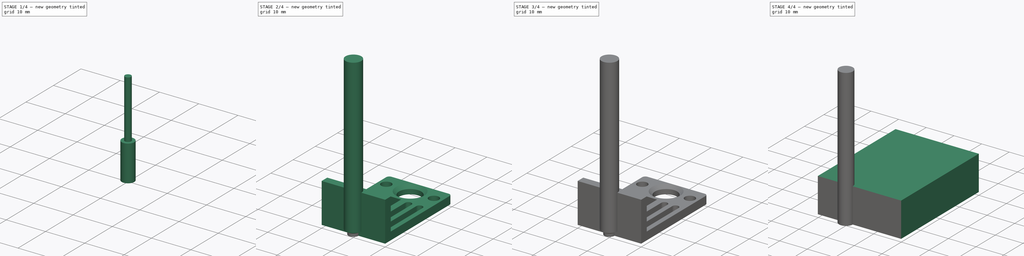
[diagram: build sequence overview — one tinted view per stage of 4, left to right]
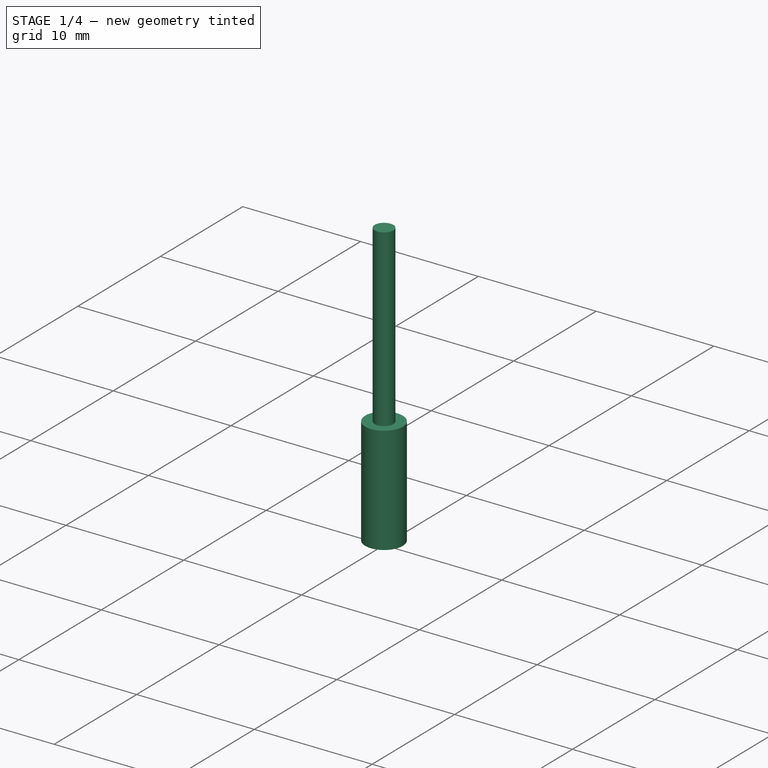
[diagram: stage 1 of 4 — iso view after this stage's code; geometry added in this stage tinted green]
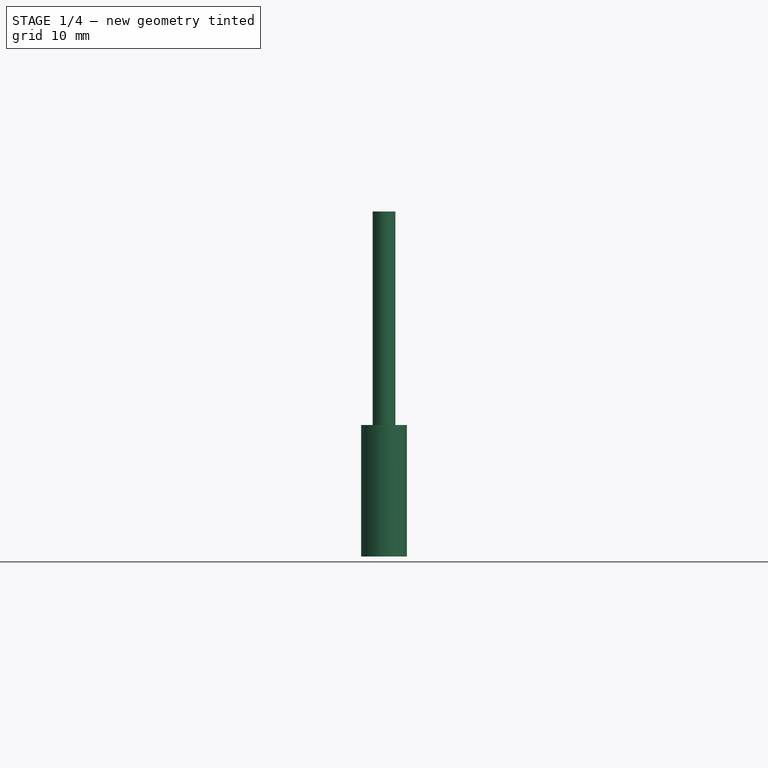
[diagram: stage 1 of 4 — front view after this stage's code; geometry added in this stage tinted green]
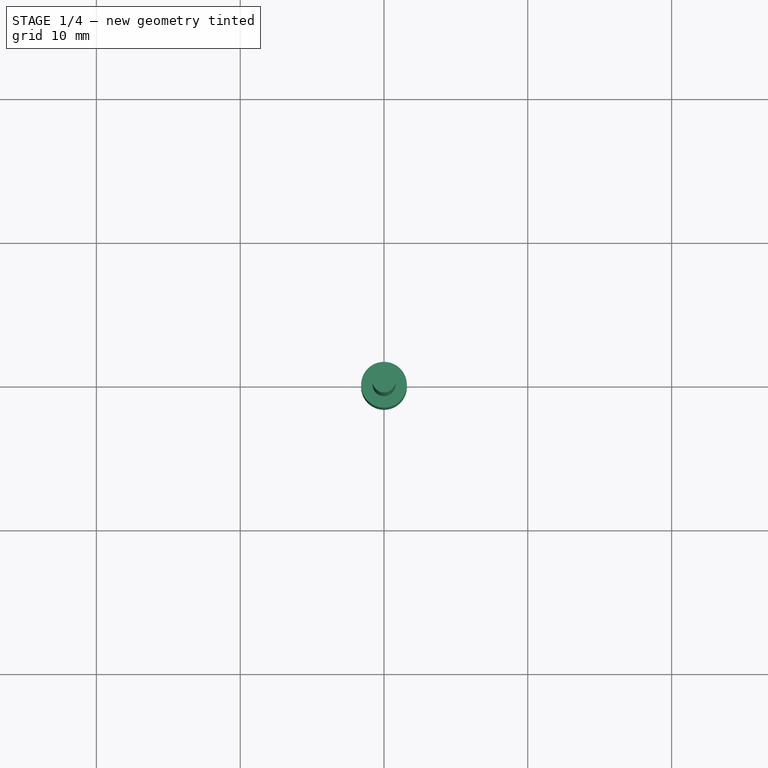
[diagram: stage 1 of 4 — top view after this stage's code; geometry added in this stage tinted green]
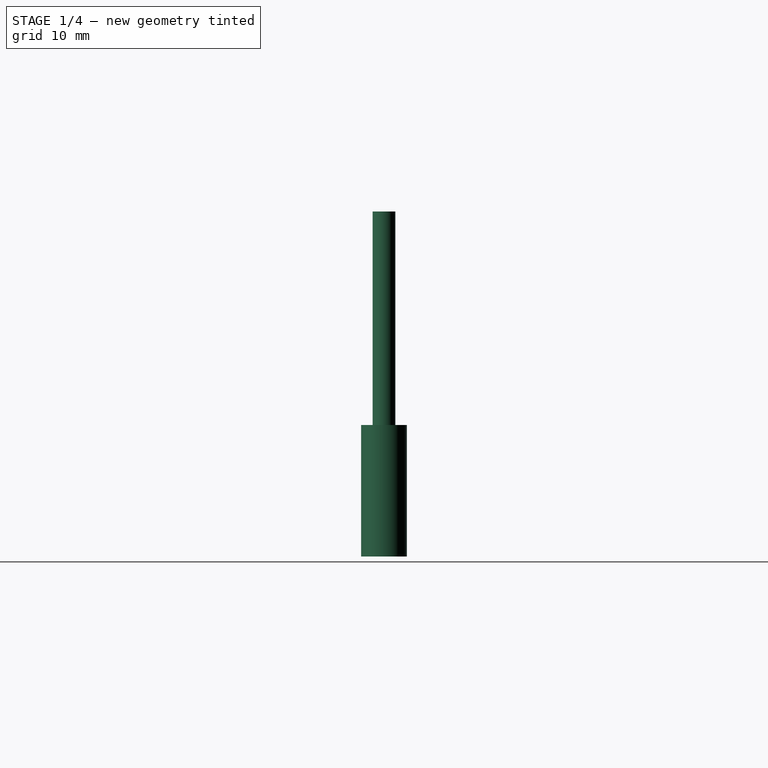
[diagram: stage 1 of 4 — right view after this stage's code; geometry added in this stage tinted green]
FCSTD DOCUMENT  (FreeCAD 0.20R29177 (Git))
Label: Heat Break
License: All rights reserved
LicenseURL: http://en.wikipedia.org/wiki/All_rights_reserved
objects: Part::FeaturePython×9, Path::FeaturePython×9, App::DocumentObjectGroup×3, App::FeaturePython×2, Part::Feature×1, Sketcher::SketchObject×1, PartDesign::Revolution×1, PartDesign::Body×1
note: 16 computed .brp shape members not serialized (recipe doc carries the construction recipe); baked Part::Feature solids carry a one-line shape summary decoded from their .brp

FEATURE [Path::FeaturePython] TC__1_55mm_Endmill001  label="TC: 1.55mm Endmill001"  # Path/CAM operation (typed FeaturePython)
  HorizFeed = 0
  HorizRapid = 0
  SpindleDir = 0
  SpindleSpeed = 0
  Tool = -> ToolBit002
  ToolNumber = 7
  VertFeed = 0
  VertRapid = 0
  expr: HorizRapid = SetupSheet.HorizRapid
  expr: VertRapid = SetupSheet.VertRapid
FEATURE [Part::FeaturePython] ToolBit003  label="1.55mm Endmill002"  # Path/CAM toolbit (typed FeaturePython)
  BitPropertyNames = Chipload | CuttingEdgeHeight | Diameter | Flutes | Length | Material | ShankDiameter | SpindleDirection
  BitShape = C:/Program Files/FreeCAD 0.20/Mod\Path\Tools\Shape\endmill.fcstd
  Chipload = 0
  CuttingEdgeHeight = 9.5
  Diameter = 1.55
  File = <userpath>/AppData/Roaming/FreeCAD/Toolbits\Bit\slittingsaw.fctb
  Flutes = 2
  Length = 19.32
  Material = 0
  ShankDiameter = 1.55
  ShapeName = endmill
  SpindleDirection = 0
FEATURE [Path::FeaturePython] TC__1_55mm_Endmill002  label="TC: 1.55mm Endmill002"  # Path/CAM operation (typed FeaturePython)
  HorizFeed = 0
  HorizRapid = 0
  SpindleDir = 0
  SpindleSpeed = 0
  Tool = -> ToolBit003
  ToolNumber = 7
  VertFeed = 0
  VertRapid = 0
  expr: HorizRapid = SetupSheet.HorizRapid
  expr: VertRapid = SetupSheet.VertRapid
FEATURE [App::DocumentObjectGroup] Tools
  Group = -> [TC__Default_Tool,TC__3_175mm_Endmill002,TC__1_55mm_Endmill001,TC__1_55mm_Endmill002]
FEATURE [Path::FeaturePython] Job  # Path/CAM operation (typed FeaturePython)
  CycleTime = 00:00:00
  Fixtures = G54
  GeometryTolerance = 0.01
  JobType = 0
  Model = -> Model
  Operations = -> Profile
  OrderOutputBy = 0
  PostProcessor = 1
  SetupSheet = -> SetupSheet
  SplitOutput = false
  Stock = -> Stock
  Tools = -> Tools
FEATURE [Path::FeaturePython] Helix001  # Path/CAM operation (typed FeaturePython)
  Active = true
  Base = -> [Clone]
  ClearanceHeight = 17.5
  CoolantMode = 0
  CycleTime = Cycletime Error
  Direction = 0
  FinalDepth = 0
  OffsetExtra = 0
  OpFinalDepth = 0
  OpStartDepth = 12.5
  OpStockZMax = 12.5
  OpStockZMin = -7.2e-15
  OpToolDiameter = 1.55
  SafeHeight = 15.5
  StartDepth = 2.6
  StartRadius = 0
  StartSide = 0
  StepDown = 0.1
  StepOver = 10
  ToolController = -> TC__1_55mm_Endmill002
  expr: ClearanceHeight = OpStockZMax + SetupSheet.ClearanceHeightOffset
  expr: FinalDepth = OpFinalDepth
  expr: SafeHeight = OpStockZMax + SetupSheet.SafeHeightOffset
  expr: StartDepth = 2.6mm
  expr: StepDown = 0.1mm
FEATURE [App::DocumentObjectGroup] Operations
  Group = -> [Profile,Pocket_Shape,Helix,Helix001]
FEATURE [Part::FeaturePython] temptool002  label="3.175mm Endmill004"  # Path/CAM toolbit (typed FeaturePython)
  BitPropertyNames = Chipload | CuttingEdgeHeight | Diameter | Flutes | Length | Material | ShankDiameter | SpindleDirection
  BitShape = C:/Program Files/FreeCAD 0.20/Mod\Path\Tools\Shape\endmill.fcstd
  Chipload = 0
  CuttingEdgeHeight = 9.15
  Diameter = 3.18
  File = <userpath>/AppData/Roaming/FreeCAD/Toolbits\Bit\5mm_Endmill.fctb
  Flutes = 2
  Length = 24
  Material = 0
  ShankDiameter = 1.59
  ShapeName = endmill
  SpindleDirection = 0
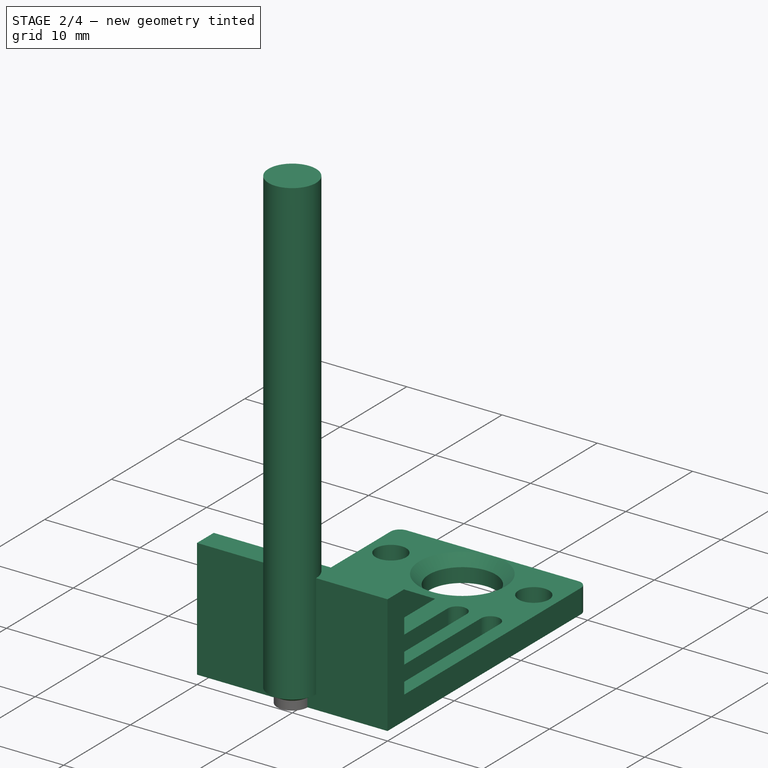
[diagram: stage 2 of 4 — iso view after this stage's code; geometry added in this stage tinted green]
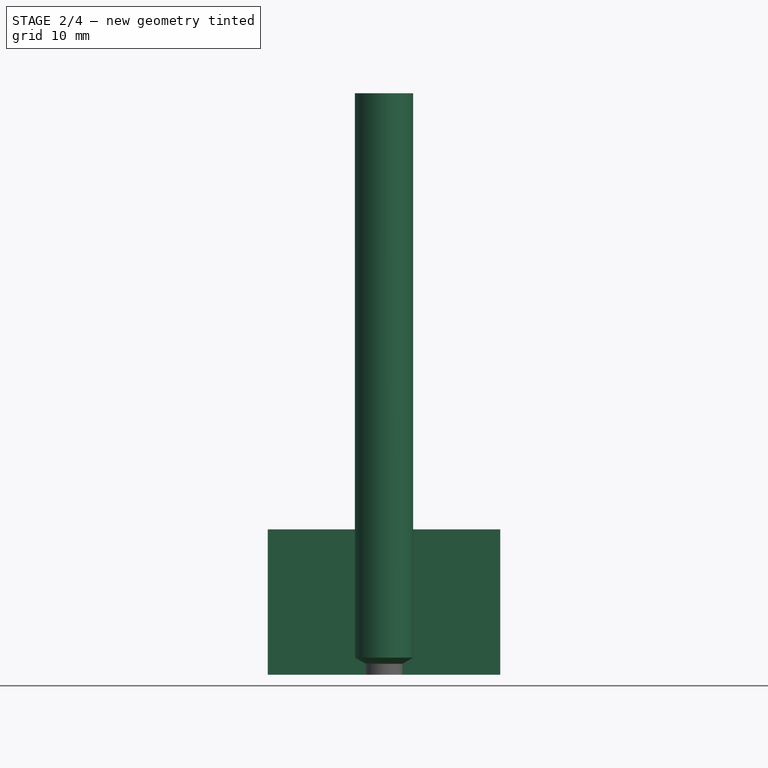
[diagram: stage 2 of 4 — front view after this stage's code; geometry added in this stage tinted green]
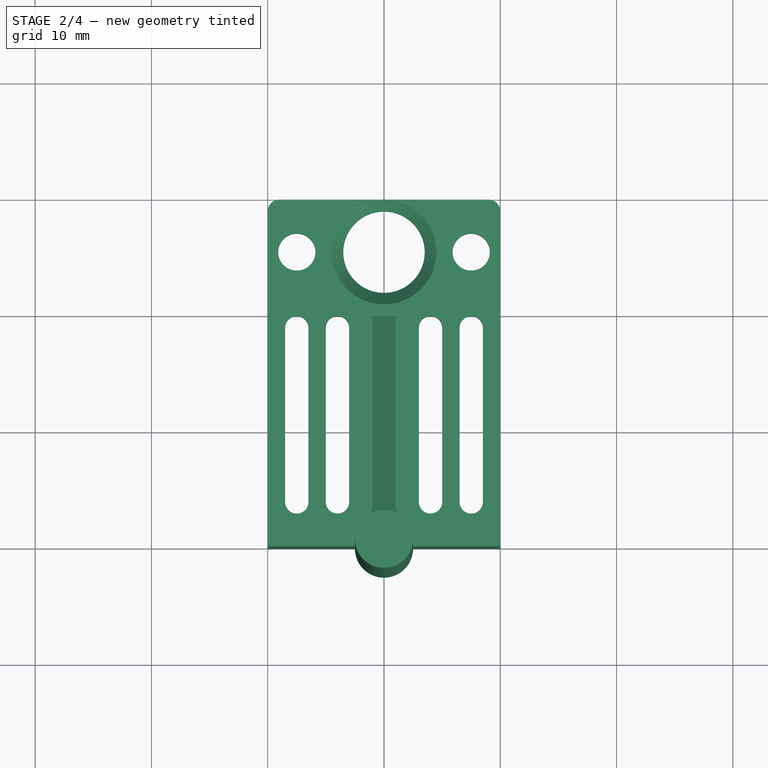
[diagram: stage 2 of 4 — top view after this stage's code; geometry added in this stage tinted green]
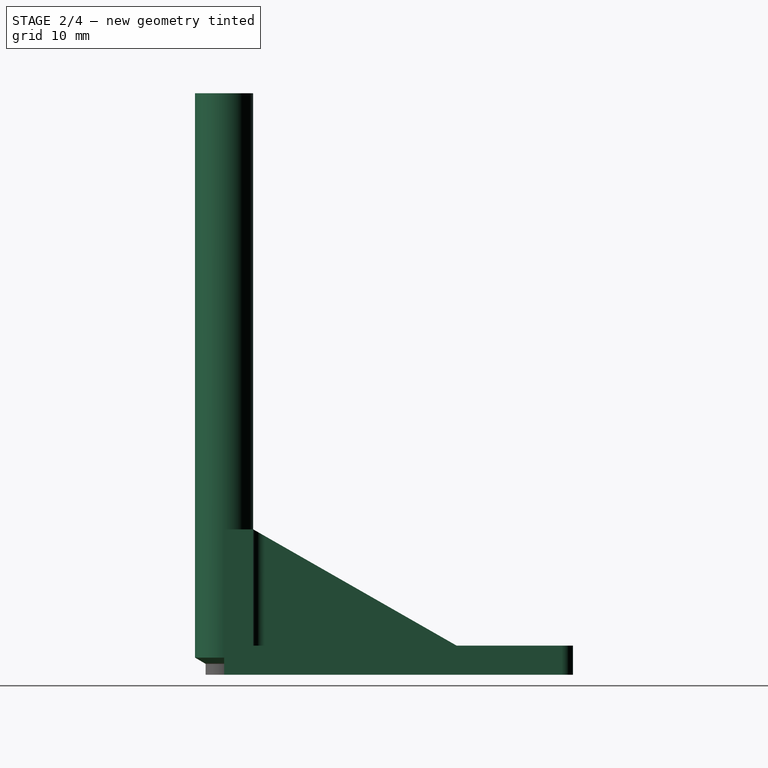
[diagram: stage 2 of 4 — right view after this stage's code; geometry added in this stage tinted green]
FEATURE [Part::Feature] Part__Feature  label="Fillet002"
  Placement = pos=(0,0,0) rot=(1,0,0;-1.5708rad)
  shape: bbox 20 x 30 x 12.5 mm, 42 faces (baked)
FEATURE [App::FeaturePython] SetupSheet  # Path/CAM operation (typed FeaturePython)
  ClearanceHeightExpression = OpStockZMax+SetupSheet.ClearanceHeightOffset
  ClearanceHeightOffset = 5
  CoolantMode = 0
  CoolantModes = None | Flood | Mist
  FinalDepthExpression = OpFinalDepth
  HorizRapid = 0
  SafeHeightExpression = OpStockZMax+SetupSheet.SafeHeightOffset
  SafeHeightOffset = 3
  StartDepthExpression = OpStartDepth
  StepDownExpression = OpToolDiameter
  VertRapid = 0
FEATURE [Part::FeaturePython] Clone  label="Model-Fillet002"  # Draft clone (typed FeaturePython)
  AttacherType = Attacher::AttachEngine3D
  Fuse = false
  Objects = -> [Part__Feature]
  PathResource = Model
  Placement = pos=(0,0,0) rot=(1,0,0;-1.5708rad)
  Scale = (1,1,1)
FEATURE [Path::FeaturePython] Profile  # Path/CAM operation (typed FeaturePython)
  Active = true
  AreaParams:
    Tolerance = 1e-07
    FitArcs = True
    Simplify = False
    CleanDistance = 0.0
    Accuracy = 0.01
    Unit = 1.0
    MinArcPoints = 4
    MaxArcPoints = 100
    ClipperScale = 10000000.0
    Fill = 0
    Coplanar = 0
    Reorient = True
    Outline = False
    Explode = False
    OpenMode = 0
    Deflection = 0.01
    SubjectFill = 0
    ClipFill = 0
    Offset = -1.59
    ExtraPass = 0
    Stepover = 0.0
    LastStepover = 0.0
    JoinType = 0
    EndType = 0
    MiterLimit = 2.0
    RoundPrecision = 0.0
    PocketMode = 0
    ToolRadius = 1.0
    PocketExtraOffset = 0.0
    PocketStepover = 0.0
    PocketLastStepover = 0.0
    FromCenter = False
    Angle = 45.0
    AngleShift = 0.0
    Shift = 0.0
    Thicken = False
    SectionCount = -1
    Stepdown = 1.0
    SectionOffset = 0.0
    SectionTolerance = 1e-06
    SectionMode = 2
    Project = False
  Base = -> [Clone]
  ClearanceHeight = 17.5
  CoolantMode = 0
  CycleTime = Cycletime Error
  Direction = 0
  FinalDepth = 2.5
  HandleMultipleFeatures = 0
  JoinType = 0
  MiterLimit = 0.1
  OffsetExtra = 0
  OpFinalDepth = 2.5
  OpStartDepth = 12.5
  OpStockZMax = 12.5
  OpStockZMin = -7.2e-15
  OpToolDiameter = 3.18
  PathParams = {'orientation': 1, 'feedrate': 0.0, 'feedrate_v': 0.0, 'verbose': True, 'resume_height': 15.5, 'retraction': 17.5, 'return_end': True, 'preamble': False}
  SafeHeight = 15.5
  Side = 1
  SplitArcs = false
  StartDepth = 12.5
  StartPoint = (0,0,0)
  StepDown = 0.1
  ToolController = -> TC__3_175mm_Endmill002
  UseComp = true
  UseStartPoint = false
  processCircles = false
  processHoles = false
  processPerimeter = true
  expr: ClearanceHeight = OpStockZMax + SetupSheet.ClearanceHeightOffset
  expr: FinalDepth = OpFinalDepth
  expr: SafeHeight = OpStockZMax + SetupSheet.SafeHeightOffset
  expr: StartDepth = OpStartDepth
  expr: StepDown = 0.1mm
FEATURE [Path::FeaturePython] Pocket_Shape  # Path/CAM operation (typed FeaturePython)
  Active = true
  AreaParams:
    Tolerance = 1e-07
    FitArcs = True
    Simplify = False
    CleanDistance = 0.0
    Accuracy = 0.01
    Unit = 1.0
    MinArcPoints = 4
    MaxArcPoints = 100
    ClipperScale = 10000000.0
    Fill = 0
    Coplanar = 0
    Reorient = True
    Outline = False
    Explode = False
    OpenMode = 0
    Deflection = 0.01
    SubjectFill = 0
    ClipFill = 0
    Offset = 0.0
    ExtraPass = 0
    Stepover = 0.0
    LastStepover = 0.0
    JoinType = 0
    EndType = 0
    MiterLimit = 2.0
    RoundPrecision = 0.0
    PocketMode = 2
    ToolRadius = 1.59
    PocketExtraOffset = 0.0
    PocketStepover = 1.59
    PocketLastStepover = 0.0
    FromCenter = True
    Angle = 45.0
    AngleShift = 0.0
    Shift = 0.0
    Thicken = False
    SectionCount = -1
    Stepdown = 1.0
    SectionOffset = 0.0
    SectionTolerance = 1e-06
    SectionMode = 2
    Project = False
  Base = -> [Clone]
  ClearanceHeight = 17.5
  CoolantMode = 0
  CutMode = 0
  CycleTime = Cycletime Error
  ExtensionCorners = true
  ExtensionLengthDefault = 1.59
  ExtraOffset = 0
  FinalDepth = 2.5
  FinishDepth = 0
  KeepToolDown = false
  MinTravel = false
  OffsetPattern = 1
  OpFinalDepth = 2.5
  OpStartDepth = 12.5
  OpStockZMax = 12.5
  OpStockZMin = -7.2e-15
  OpToolDiameter = 3.18
  PathParams = {'orientation': 1, 'feedrate': 0.0, 'feedrate_v': 0.0, 'verbose': True, 'resume_height': 15.5, 'retraction': 17.5, 'return_end': True, 'preamble': False, 'start': Vector (1.347428048544211, 26.847414632252125, 17.5)}
  PocketLastStepOver = 0
  SafeHeight = 15.5
  SplitArcs = false
  StartAt = 0
  StartDepth = 12.5
  StartPoint = (0,0,0)
  StepDown = 0.1
  StepOver = 50
  ToolController = -> TC__3_175mm_Endmill002
  UseOutline = false
  UseStartPoint = false
  ZigZagAngle = 45
  expr: ClearanceHeight = OpStockZMax + SetupSheet.ClearanceHeightOffset
  expr: ExtensionLengthDefault = OpToolDiameter / 2
  expr: FinalDepth = OpFinalDepth
  expr: SafeHeight = OpStockZMax + SetupSheet.SafeHeightOffset
  expr: StartDepth = OpStartDepth
  expr: StepDown = 0.1mm
FEATURE [Path::FeaturePython] Helix  # Path/CAM operation (typed FeaturePython)
  Active = true
  Base = -> [Clone]
  ClearanceHeight = 17.5
  CoolantMode = 0
  CycleTime = Cycletime Error
  Direction = 0
  FinalDepth = 0
  OffsetExtra = 0
  OpFinalDepth = 0
  OpStartDepth = 12.5
  OpStockZMax = 12.5
  OpStockZMin = -7.2e-15
  OpToolDiameter = 3.18
  SafeHeight = 15.5
  StartDepth = 2.6
  StartRadius = 0
  StartSide = 0
  StepDown = 0.1
  StepOver = 50
  ToolController = -> TC__3_175mm_Endmill002
  expr: ClearanceHeight = OpStockZMax + SetupSheet.ClearanceHeightOffset
  expr: FinalDepth = OpFinalDepth
  expr: SafeHeight = OpStockZMax + SetupSheet.SafeHeightOffset
  expr: StartDepth = 2.6
  expr: StepDown = 0.1mm
FEATURE [Part::FeaturePython] temptool001  label="1.55mm Endmill"  # Path/CAM toolbit (typed FeaturePython)
  BitPropertyNames = Chipload | Diameter | Flutes | Length | Material | TipAngle
  BitShape = C:/Program Files/FreeCAD 0.20/Mod\Path\Tools\Shape\drill.fcstd
  Chipload = 0
  Diameter = 5
  File = <userpath>/AppData/Roaming/FreeCAD/Toolbits\Bit\5mm_Drill.fctb
  Flutes = 0
  Length = 50
  Material = 0
  ShapeName = drill
  TipAngle = 119
FEATURE [Part::FeaturePython] ToolBit002  label="1.55mm Endmill001"  # Path/CAM toolbit (typed FeaturePython)
  BitPropertyNames = Chipload | CuttingEdgeHeight | Diameter | Flutes | Length | Material | ShankDiameter | SpindleDirection
  BitShape = C:/Program Files/FreeCAD 0.20/Mod\Path\Tools\Shape\endmill.fcstd
  Chipload = 0
  CuttingEdgeHeight = 9.5
  Diameter = 1.55
  File = <userpath>/AppData/Roaming/FreeCAD/Toolbits\Bit\slittingsaw.fctb
  Flutes = 2
  Length = 19.32
  Material = 0
  ShankDiameter = 1.55
  ShapeName = endmill
  SpindleDirection = 0
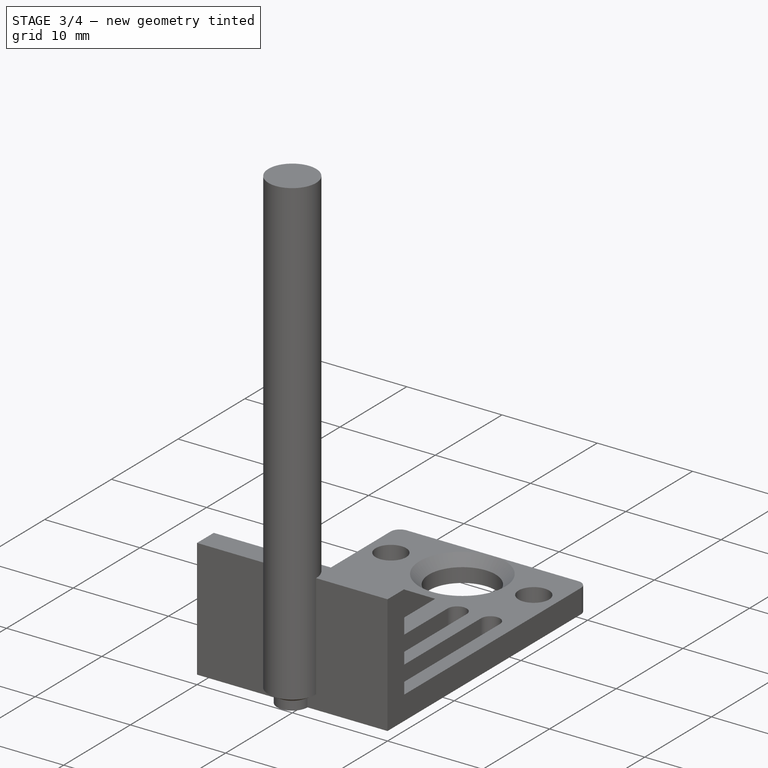
[diagram: stage 3 of 4 — iso view after this stage's code; geometry added in this stage tinted green]
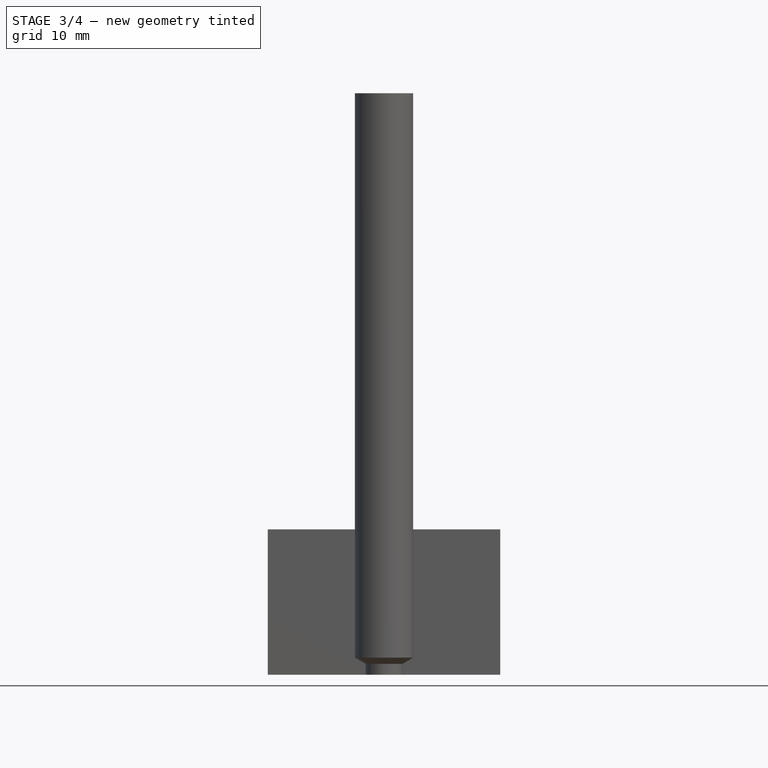
[diagram: stage 3 of 4 — front view after this stage's code; geometry added in this stage tinted green]
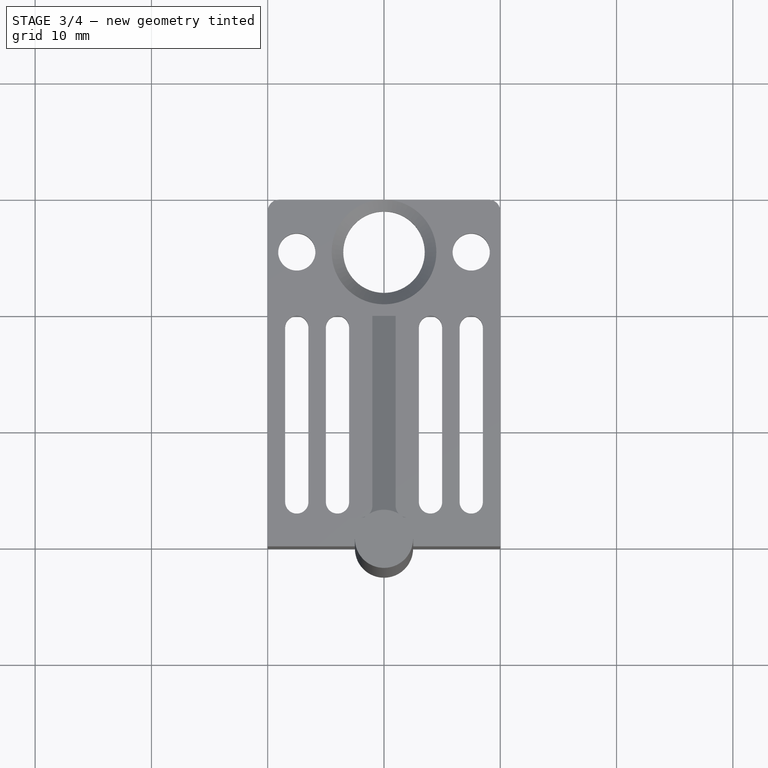
[diagram: stage 3 of 4 — top view after this stage's code; geometry added in this stage tinted green]
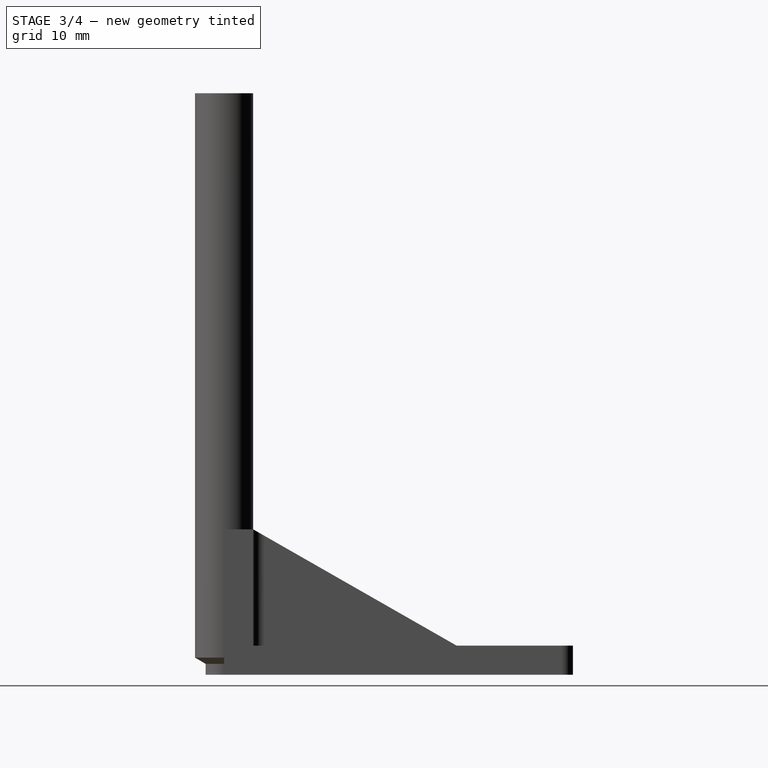
[diagram: stage 3 of 4 — right view after this stage's code; geometry added in this stage tinted green]
FEATURE [Part::FeaturePython] ToolBit001  label="3.175mm Endmill002"  # Path/CAM toolbit (typed FeaturePython)
  BitPropertyNames = Chipload | CuttingEdgeHeight | Diameter | Flutes | Length | Material | ShankDiameter | SpindleDirection
  BitShape = C:/Program Files/FreeCAD 0.20/Mod\Path\Tools\Shape\endmill.fcstd
  Chipload = 0
  CuttingEdgeHeight = 9.15
  Diameter = 3.18
  File = <userpath>/AppData/Roaming/FreeCAD/Toolbits\Bit\5mm_Endmill.fctb
  Flutes = 2
  Length = 24
  Material = 0
  ShankDiameter = 3.18
  ShapeName = endmill
  SpindleDirection = 0
FEATURE [Path::FeaturePython] TC__3_175mm_Endmill002  label="TC: 3.175mm Endmill002"  # Path/CAM operation (typed FeaturePython)
  HorizFeed = 0
  HorizRapid = 0
  SpindleDir = 0
  SpindleSpeed = 0
  Tool = -> ToolBit001
  ToolNumber = 1
  VertFeed = 0
  VertRapid = 0
  expr: HorizRapid = SetupSheet.HorizRapid
  expr: VertRapid = SetupSheet.VertRapid
FEATURE [Sketcher::SketchObject] Sketch
  FullyConstrained = true
  MapMode = 5
  Placement = pos=(0,0,0) rot=(1,0,0;1.5708rad)
  Support = -> [XZ_Plane]
  expr: Constraints[10] = <<Attributes>>.Length
  expr: Constraints[16] = <<Attributes>>.ShankDiameter
  expr: Constraints[18] = <<Attributes>>.CuttingEdgeHeight
  expr: Constraints[9] = <<Attributes>>.Diameter
  sketch-geometry (8):
    g0: LineSegment StartX=0 StartY=24 StartZ=0 EndX=0 EndY=0 EndZ=0
    g1: LineSegment StartX=0 StartY=0 StartZ=0 EndX=1.59 EndY=0 EndZ=0
    g2: LineSegment StartX=1.59 StartY=0 StartZ=0 EndX=1.59 EndY=9.15 EndZ=0
    g3: LineSegment StartX=1.59 StartY=24 StartZ=0 EndX=0 EndY=24 EndZ=0
    g4: LineSegment StartX=1.59 StartY=0 StartZ=0 EndX=-1.59 EndY=0 EndZ=0
    g5: LineSegment StartX=1.59 StartY=9.14 StartZ=0 EndX=1.59 EndY=9.15 EndZ=0
    g6: LineSegment StartX=1.59 StartY=24 StartZ=0 EndX=1.59 EndY=9.14 EndZ=0
    g7: LineSegment StartX=-1.59 StartY=24 StartZ=0 EndX=1.59 EndY=24 EndZ=0
  constraints (21):
    c: Vertical(g0)
    c: Coincident(g0,g1)
    c: Horizontal(g1)
    c: Coincident(g1,g2)
    c: Vertical(g2)
    c: Horizontal(g3)
    c: Coincident(g0,g3)
    c: Coincident(g4,g1)
    c: Symmetric(g1,g4,g0)
    c: DistanceX(g4,g4) = 3.18
    c: DistanceY(g2,g3) = 24
    c: Coincident(g2,g5)
    c: Vertical(g6)
    c: Coincident(g3,g6)
    c: Symmetric(g7,g7,g0)
    c: Coincident(g7,g3)
    c: DistanceX(g7,g7) = 3.18
    c: Coincident(g5,g6)
    c: DistanceY(g2) = 9.15
    c: Coincident(g0,g-1)
    c: DistanceY(g5,g2) = 0.01
FEATURE [PartDesign::Revolution] Revolution
  AllowMultiFace = false
  Angle = 360
  Axis = (0,-2e-16,1)
  Base = (0,0,0)
  Placement = pos=(0,0,0) rot=(1,0,0;1.5708rad)
  Profile = -> Sketch
  ReferenceAxis = -> Sketch [V_Axis]
  Reversed = true
FEATURE [App::FeaturePython] PropertyBag  label="Attributes"  # WARN: FeaturePython — macro-defined, semantics opaque (R4)
  Chipload = 0
  CustomPropertyGroups = Attributes | Shape
  CuttingEdgeHeight = 9.15
  Diameter = 3.18
  Flutes = 2
  Length = 24
  Material = 0
  ShankDiameter = 3.18
  SpindleDirection = 0
FEATURE [PartDesign::Body] Body  label="Endmill002"
  Group = -> [Sketch,Revolution,PropertyBag]
  Origin = -> Origin
  Tip = -> Revolution
FEATURE [Part::FeaturePython] temptool  label="3.175mm Endmill003"  # Path/CAM toolbit (typed FeaturePython)
  BitBody = -> Body
  BitPropertyNames = Chipload | CuttingEdgeHeight | Diameter | Flutes | Length | Material | ShankDiameter | SpindleDirection
  BitShape = C:/Program Files/FreeCAD 0.20/Mod\Path\Tools\Shape\endmill.fcstd
  Chipload = 0
  CuttingEdgeHeight = 9.15
  Diameter = 3.18
  File = <userpath>/AppData/Roaming/FreeCAD/Toolbits\Bit\5mm_Endmill.fctb
  Flutes = 2
  Length = 24
  Material = 0
  ShankDiameter = 3.18
  ShapeName = endmill
  SpindleDirection = 0
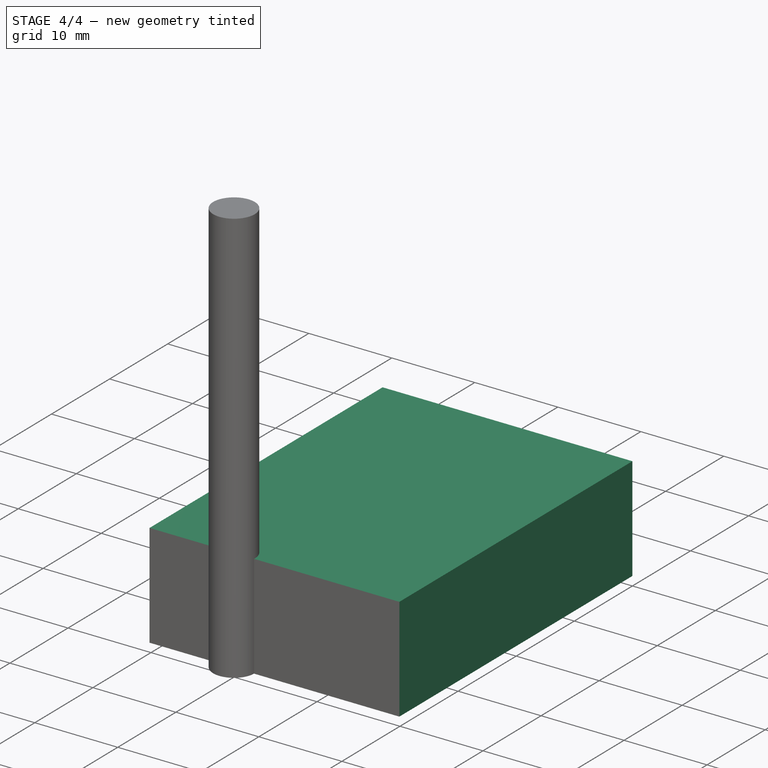
[diagram: stage 4 of 4 — iso view after this stage's code; geometry added in this stage tinted green]
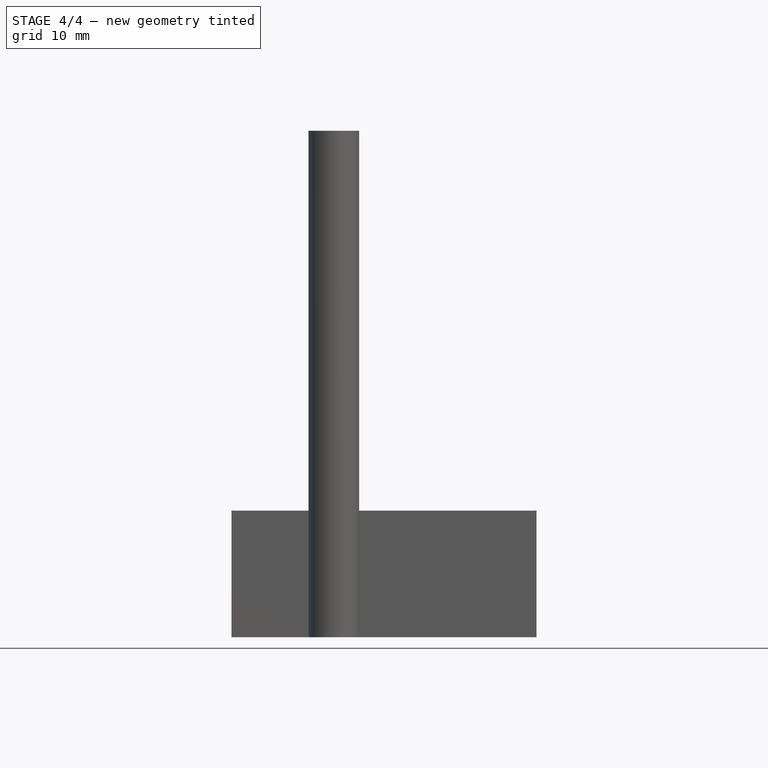
[diagram: stage 4 of 4 — front view after this stage's code; geometry added in this stage tinted green]
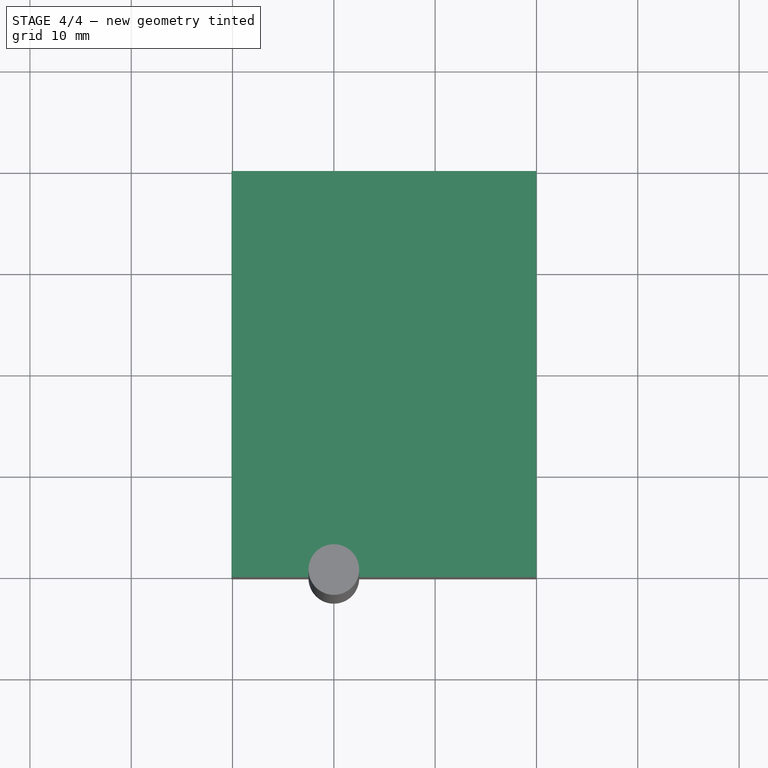
[diagram: stage 4 of 4 — top view after this stage's code; geometry added in this stage tinted green]
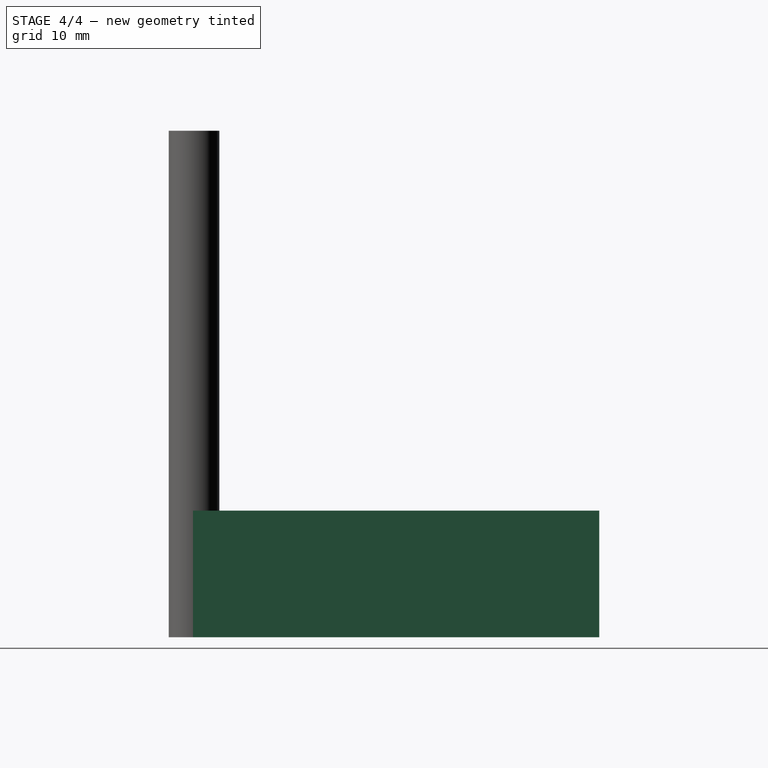
[diagram: stage 4 of 4 — right view after this stage's code; geometry added in this stage tinted green]
FEATURE [App::DocumentObjectGroup] Model
  Group = -> [Clone]
FEATURE [Part::FeaturePython] ToolBit  label="Endmill"  # Path/CAM toolbit (typed FeaturePython)
  BitPropertyNames = Chipload | CuttingEdgeHeight | Diameter | Flutes | Length | Material | ShankDiameter | SpindleDirection
  BitShape = C:/Program Files/FreeCAD 0.20/Mod\Path\Tools\Shape\endmill.fcstd
  Chipload = 0
  CuttingEdgeHeight = 30
  Diameter = 5
  Flutes = 0
  Length = 50
  Material = 0
  ShankDiameter = 3
  ShapeName = endmill
  SpindleDirection = 0
FEATURE [Path::FeaturePython] TC__Default_Tool  label="TC: Default Tool"  # Path/CAM operation (typed FeaturePython)
  HorizFeed = 0
  HorizRapid = 0
  SpindleDir = 0
  SpindleSpeed = 0
  Tool = -> ToolBit
  ToolNumber = 1
  VertFeed = 0
  VertRapid = 0
  expr: HorizRapid = SetupSheet.HorizRapid
  expr: VertRapid = SetupSheet.VertRapid
FEATURE [Part::FeaturePython] Stock  # WARN: FeaturePython — macro-defined, semantics opaque (R4)
  Base = -> Model
  ExtXneg = 0.1
  ExtXpos = 10
  ExtYneg = 0.1
  ExtYpos = 10
  ExtZneg = 0
  ExtZpos = 0
  Placement = pos=(-10,-2e-16,-7.2e-15) rot=(0,0,1;0rad)
  StockType = FromBase
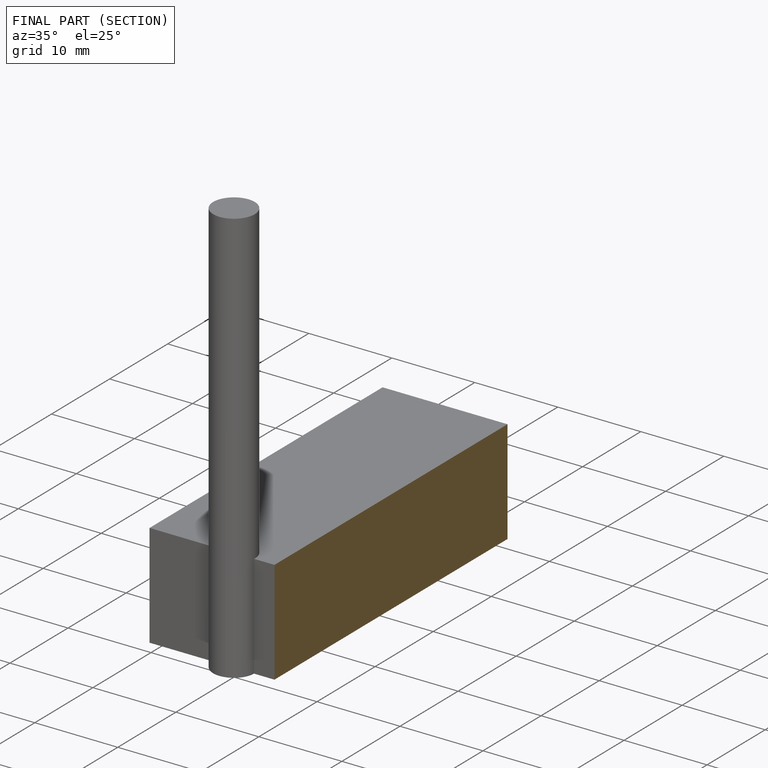
[diagram: finished part — half-section view (interior)]
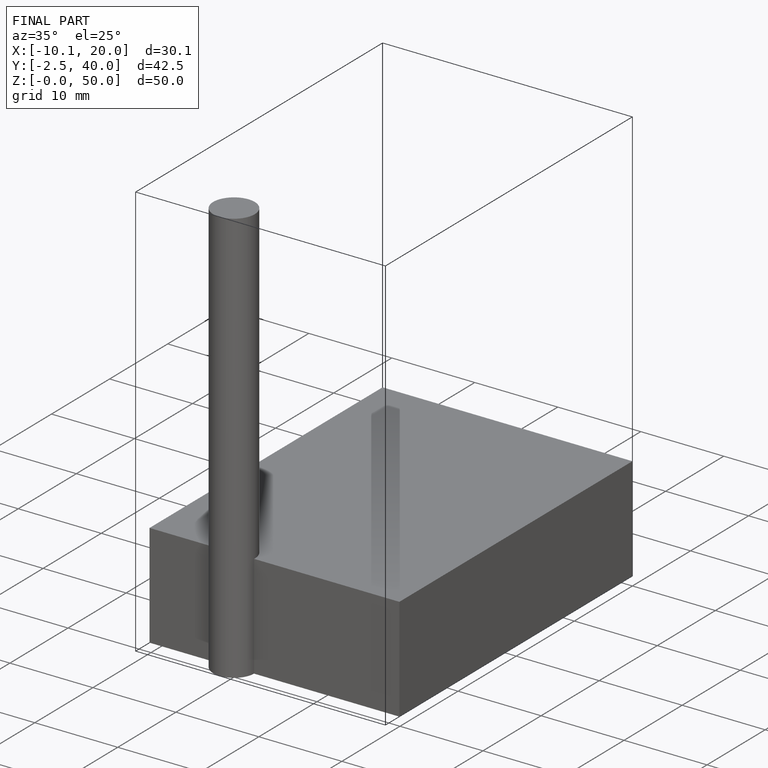
[diagram: finished part — iso view with bounding-box wireframe]
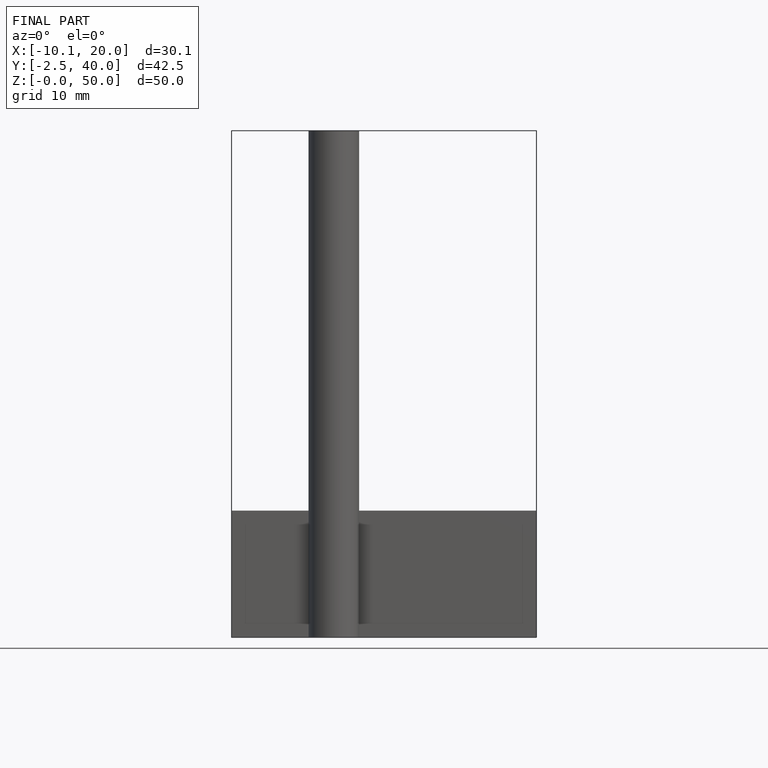
[diagram: finished part — front view with bounding-box wireframe]
